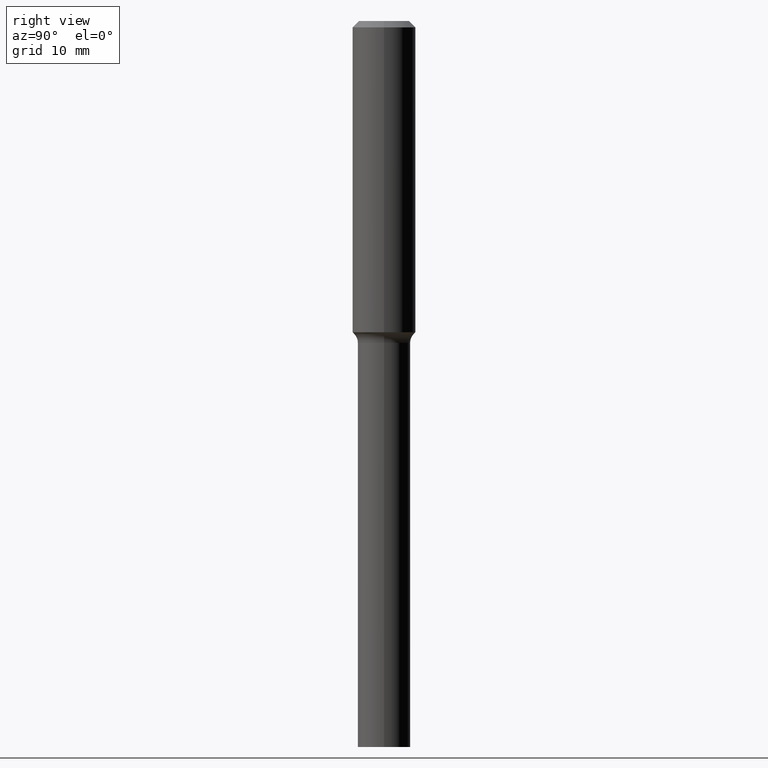
[diagram: clean part render]
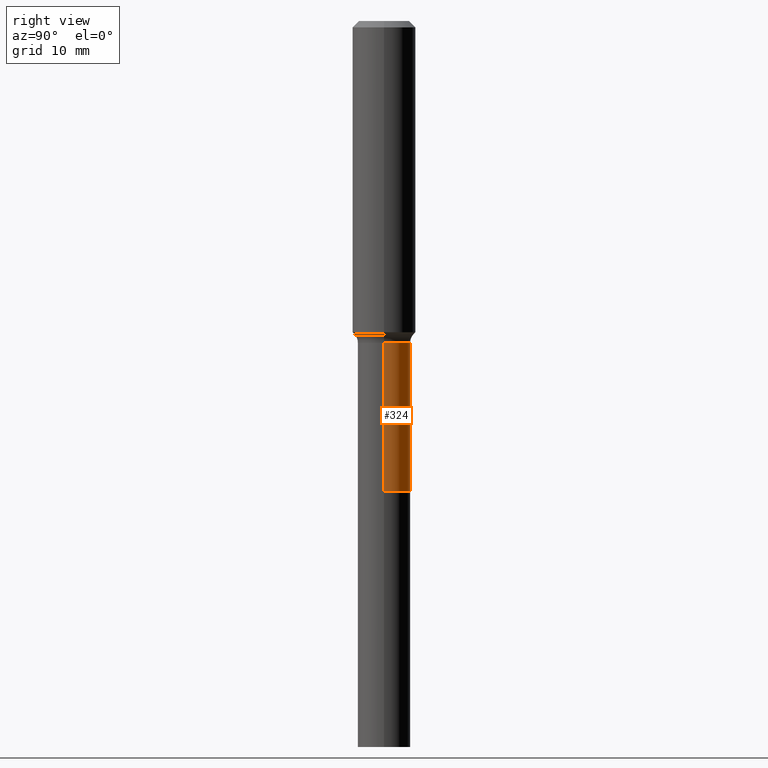
[diagram: same view with one face highlighted and labeled with its STEP entity id]
A machine part, right view. The second image highlights one B-rep face of the part: STEP entity #324.
In plain terms, the highlighted cylindrical surface (edge-blend (fillet) strip) has radius 4.1669 mm, axis along (-0, 0, 1).
Its self-contained STEP definition (entity closure, byte-faithful):
#11 = VERTEX_POINT ( 'NONE', #298 ) ;
#34 = CARTESIAN_POINT ( 'NONE',  ( 0.1640500000000000014, -1.145555027274432057E-15, 7.999368000693231542E-30 ) ) ;
#35 = DIRECTION ( 'NONE',  ( 1.000000000000000000, -6.982962677686267499E-15, 0.000000000000000000 ) ) ;
#55 = DIRECTION ( 'NONE',  ( -2.445468806185136597E-29, 3.491481338843145583E-15, 1.000000000000000000 ) ) ;
#59 = DIRECTION ( 'NONE',  ( 1.000000000000000000, -6.982962677686266711E-15, 4.876176775795935232E-29 ) ) ;
#75 = DIRECTION ( 'NONE',  ( -2.445468806185136597E-29, 3.491481338843145583E-15, 1.000000000000000000 ) ) ;
#82 = EDGE_CURVE ( 'NONE', #293, #126, #360, .T. ) ;
#105 = EDGE_CURVE ( 'NONE', #11, #290, #281, .T. ) ;
#112 = DIRECTION ( 'NONE',  ( -2.445468806185136877E-29, 3.491481338843145188E-15, 1.000000000000000000 ) ) ;
#126 = VERTEX_POINT ( 'NONE', #503 ) ;
#128 = ORIENTED_EDGE ( 'NONE', *, *, #283, .T. ) ;
#134 = CYLINDRICAL_SURFACE ( 'NONE', #403, 0.1640500000000000014 ) ;
#152 = DIRECTION ( 'NONE',  ( -2.445468806185136877E-29, 3.491481338843145188E-15, 1.000000000000000000 ) ) ;
#186 = CARTESIAN_POINT ( 'NONE',  ( 0.000000000000000000, 0.000000000000000000, 0.000000000000000000 ) ) ;
#187 = ORIENTED_EDGE ( 'NONE', *, *, #105, .F. ) ;
#199 = AXIS2_PLACEMENT_3D ( 'NONE', #304, #55, #423 ) ;
#204 = CARTESIAN_POINT ( 'NONE',  ( -0.1640500000000000014, 1.165645358014444365E-15, -8.069513015563172164E-30 ) ) ;
#209 = VECTOR ( 'NONE', #152, 39.37007874015748143 ) ;
#229 = CIRCLE ( 'NONE', #239, 0.1640499999999999181 ) ;
#238 = VECTOR ( 'NONE', #112, 39.37007874015748143 ) ;
#239 = AXIS2_PLACEMENT_3D ( 'NONE', #505, #75, #35 ) ;
#250 = EDGE_LOOP ( 'NONE', ( #128, #251, #296, #187 ) ) ;
#251 = ORIENTED_EDGE ( 'NONE', *, *, #82, .T. ) ;
#252 = CIRCLE ( 'NONE', #199, 0.1640500000000000291 ) ;
#281 = LINE ( 'NONE', #34, #238 ) ;
#283 = EDGE_CURVE ( 'NONE', #11, #293, #252, .T. ) ;
#290 = VERTEX_POINT ( 'NONE', #345 ) ;
#293 = VERTEX_POINT ( 'NONE', #502 ) ;
#296 = ORIENTED_EDGE ( 'NONE', *, *, #506, .F. ) ;
#298 = CARTESIAN_POINT ( 'NONE',  ( 0.1640500000000000291, -1.138641894223526137E-14, -2.933099999999999152 ) ) ;
#304 = CARTESIAN_POINT ( 'NONE',  ( 7.172804555421622324E-29, -1.024086391496082892E-14, -2.933099999999999152 ) ) ;
#324 = ADVANCED_FACE ( 'NONE', ( #421 ), #134, .T. ) ;
#345 = CARTESIAN_POINT ( 'NONE',  ( 0.1640499999999999181, -8.155052963135929682E-15, -2.007599999999999607 ) ) ;
#347 = DIRECTION ( 'NONE',  ( -2.445468806185136597E-29, 3.491481338843145583E-15, 1.000000000000000000 ) ) ;
#360 = LINE ( 'NONE', #204, #209 ) ;
#403 = AXIS2_PLACEMENT_3D ( 'NONE', #186, #347, #59 ) ;
#421 = FACE_OUTER_BOUND ( 'NONE', #250, .T. ) ;
#423 = DIRECTION ( 'NONE',  ( 1.000000000000000000, -6.982962677686269077E-15, 0.000000000000000000 ) ) ;
#502 = CARTESIAN_POINT ( 'NONE',  ( -0.1640500000000000291, -7.459535567396716936E-15, -2.933099999999999152 ) ) ;
#503 = CARTESIAN_POINT ( 'NONE',  ( -0.1640499999999999181, -7.459535567396718514E-15, -2.007599999999999607 ) ) ;
#505 = CARTESIAN_POINT ( 'NONE',  ( 4.909523175297278955E-29, -7.009497935861498019E-15, -2.007599999999999607 ) ) ;
#506 = EDGE_CURVE ( 'NONE', #290, #126, #229, .T. ) ;